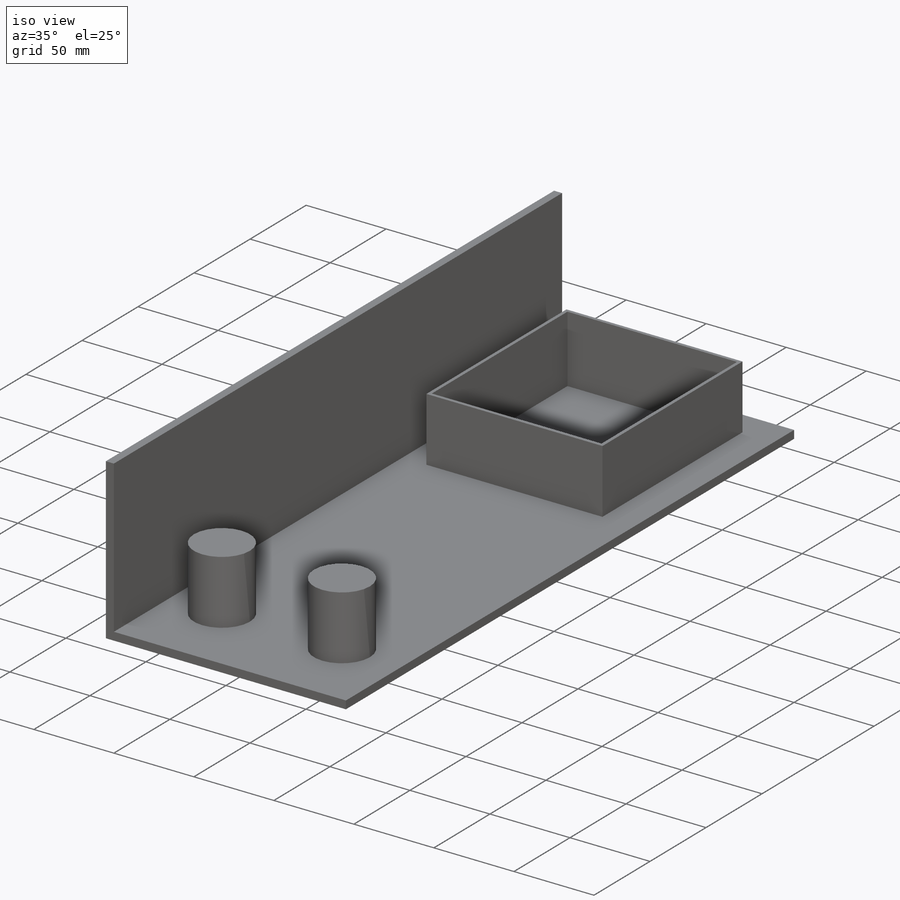
[diagram: iso view]
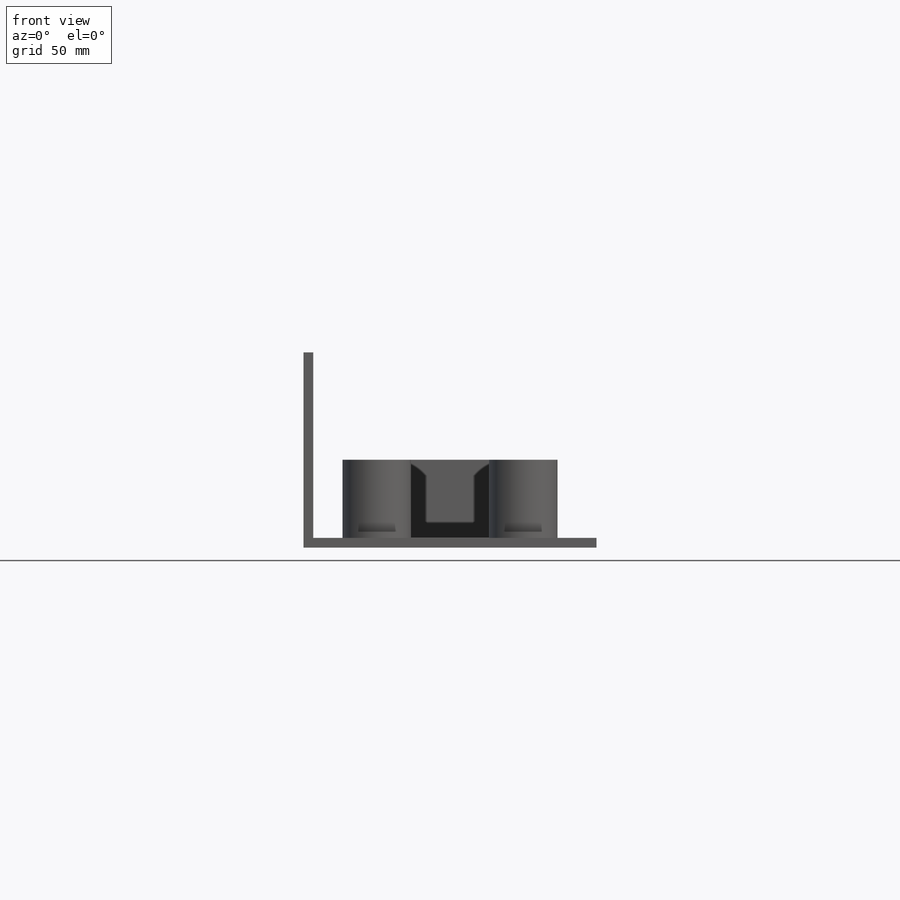
[diagram: front view]
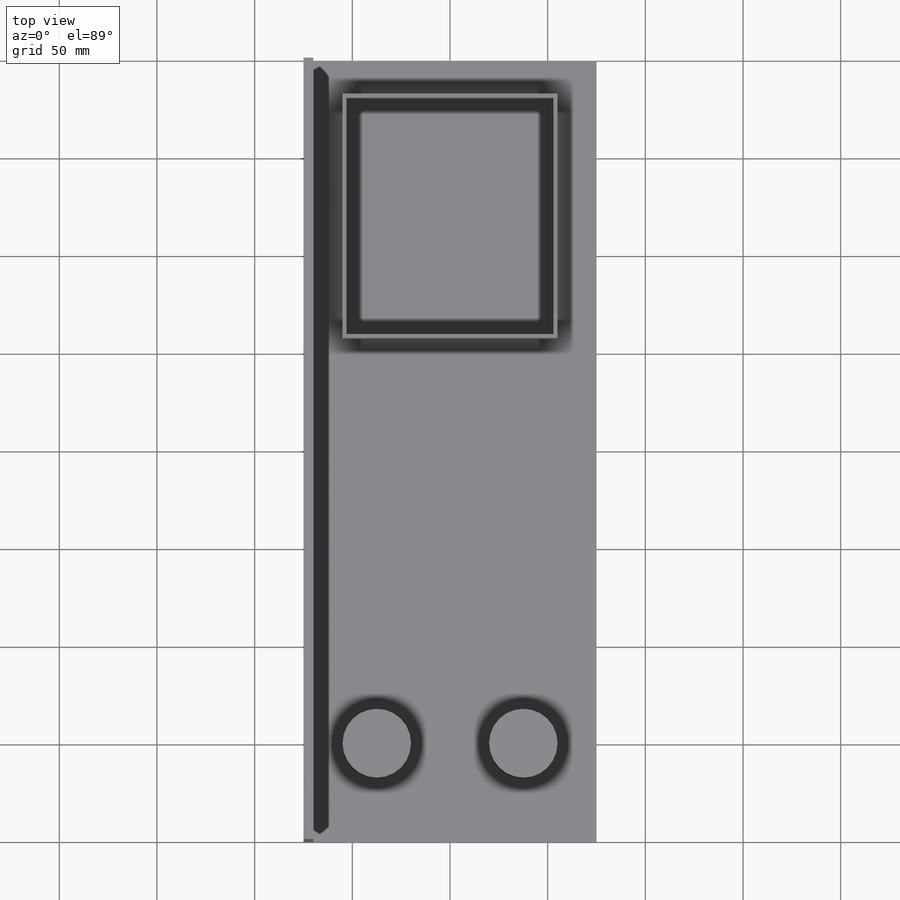
[diagram: top view]
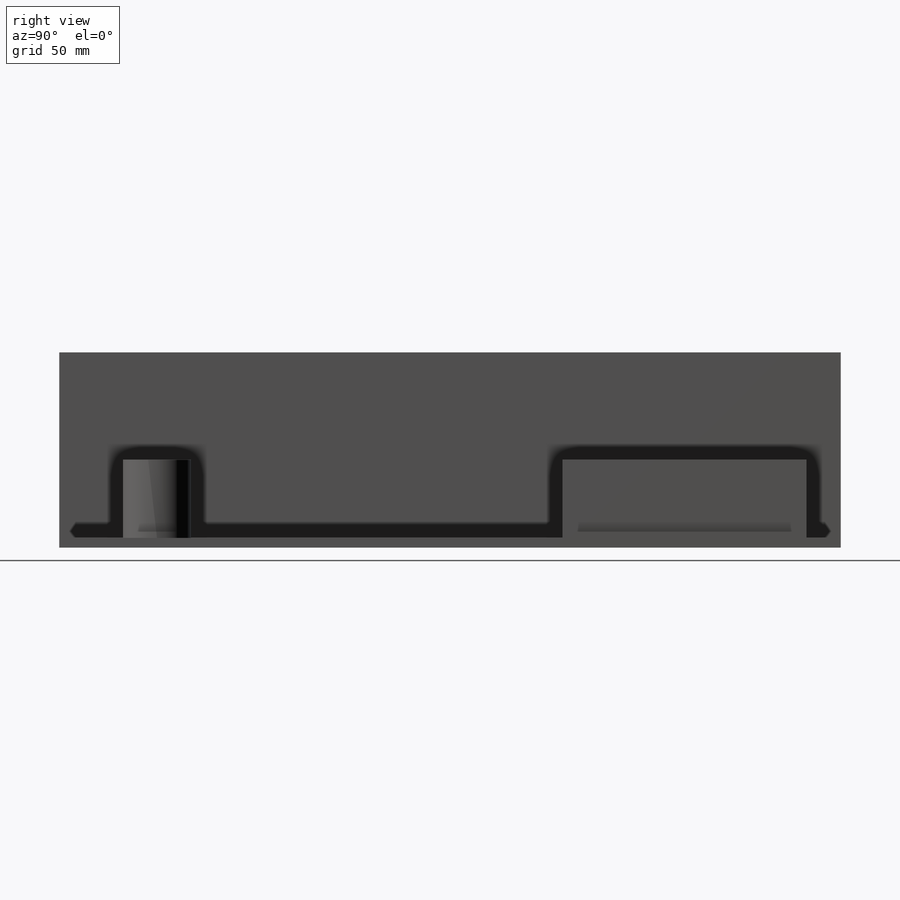
[diagram: right view]
SOLIDWORKS PART (.sldprt)
format: sldprt  version: not decoded by parser v0  size: 176,128 bytes
history: native  units: mm
features: sketch x3, extrude x3, material x1, shell x1, plane x1 (+13 scaffold rows collapsed)
feature tree (22):
  scaffold x13  (default folders/planes/origin — collapsed)
  material  "Material <not specified>"
  sketch  "Sketch1"  dims[D1=150.0mm D2=100.0mm D3=5.0mm D4=5.0mm D5=5.0mm D6=100.0mm]
  extrude  "Boss-Extrude1"  Depth=400mm
  sketch  "Sketch2"  dims[D1=35.0mm D2=35.0mm D3=50.0mm D4=75.0mm]
  extrude  "Boss-Extrude2"  Depth=40mm
  sketch  "Sketch3"  dims[D1=80.0mm D2=125.0mm D3=110.0mm]
  extrude  "Boss-Extrude3"  Depth=40mm
  shell  "Shell1"  Thickness=2mm
  plane  "Plane1"  Offset=30mm
decode coverage: 7 of 7 modeling features carry decoded parameters
note: suppression state not decoded; provenance and decode notes live in map.json
